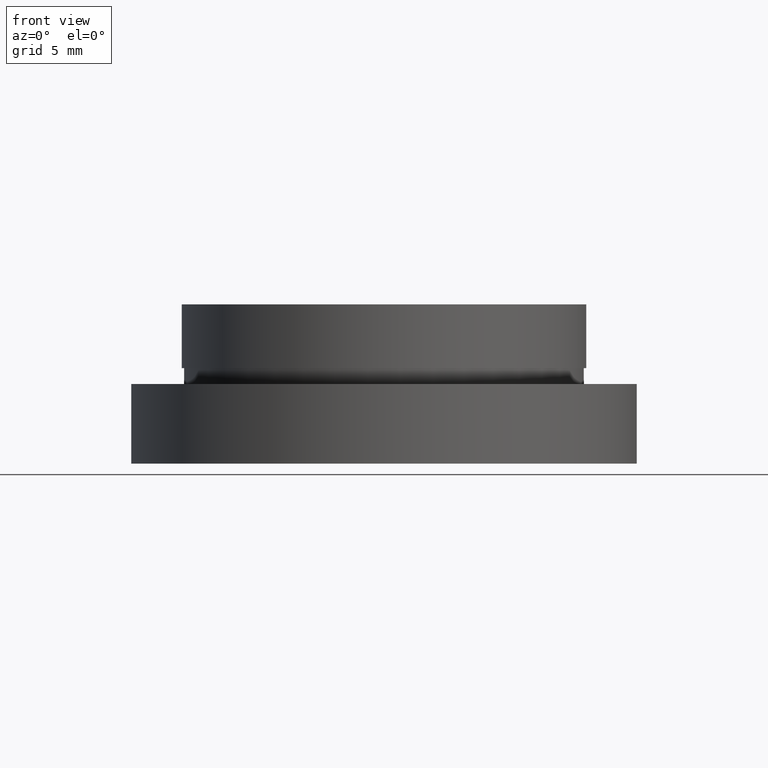
[diagram: clean part render]
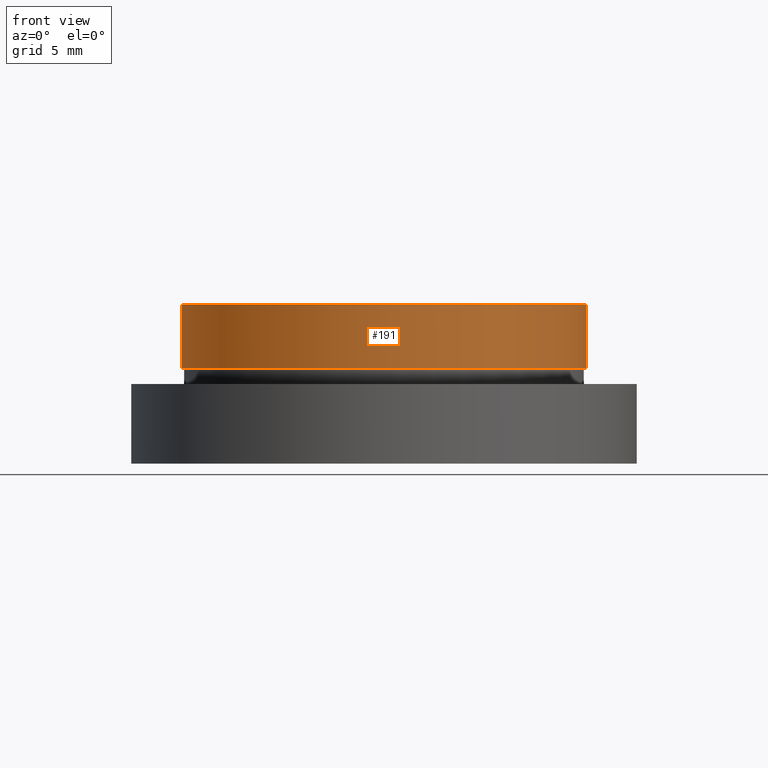
[diagram: same view with one face highlighted and labeled with its STEP entity id]
A machine part, front view. The second image highlights one B-rep face of the part: STEP entity #191.
In plain terms, the highlighted cylindrical surface (partial cylindrical patch) has radius 12.7 mm, axis along (-0, -0, -1).
Its self-contained STEP definition (entity closure, byte-faithful):
#6 = EDGE_CURVE ( 'NONE', #414, #295, #149, .T. ) ;
#24 = CARTESIAN_POINT ( 'NONE',  ( 0.0000000000000000000, 0.0000000000000000000, 0.0000000000000000000 ) ) ;
#31 = EDGE_LOOP ( 'NONE', ( #308, #97, #74, #338 ) ) ;
#38 = CARTESIAN_POINT ( 'NONE',  ( 0.0000000000000000000, 0.0000000000000000000, -4.000000000000000000 ) ) ;
#50 = EDGE_CURVE ( 'NONE', #322, #414, #172, .T. ) ;
#53 = VECTOR ( 'NONE', #292, 1000.000000000000000 ) ;
#74 = ORIENTED_EDGE ( 'NONE', *, *, #6, .T. ) ;
#81 = DIRECTION ( 'NONE',  ( -1.000000000000000000, 0.0000000000000000000, 0.0000000000000000000 ) ) ;
#97 = ORIENTED_EDGE ( 'NONE', *, *, #50, .T. ) ;
#104 = AXIS2_PLACEMENT_3D ( 'NONE', #38, #256, #181 ) ;
#105 = DIRECTION ( 'NONE',  ( -1.000000000000000000, 0.0000000000000000000, 0.0000000000000000000 ) ) ;
#119 = DIRECTION ( 'NONE',  ( -0.0000000000000000000, -0.0000000000000000000, -1.000000000000000000 ) ) ;
#133 = AXIS2_PLACEMENT_3D ( 'NONE', #24, #166, #81 ) ;
#149 = LINE ( 'NONE', #384, #53 ) ;
#161 = FACE_OUTER_BOUND ( 'NONE', #31, .T. ) ;
#166 = DIRECTION ( 'NONE',  ( -0.0000000000000000000, -0.0000000000000000000, -1.000000000000000000 ) ) ;
#172 = CIRCLE ( 'NONE', #133, 12.70000000000000100 ) ;
#181 = DIRECTION ( 'NONE',  ( -1.000000000000000000, 0.0000000000000000000, 0.0000000000000000000 ) ) ;
#191 = ADVANCED_FACE ( 'NONE', ( #161 ), #345, .T. ) ;
#203 = AXIS2_PLACEMENT_3D ( 'NONE', #210, #396, #105 ) ;
#210 = CARTESIAN_POINT ( 'NONE',  ( 0.0000000000000000000, 0.0000000000000000000, -19.14057971014493000 ) ) ;
#242 = CARTESIAN_POINT ( 'NONE',  ( 12.70000000000000100, 1.555301434917138600E-015, -4.000000000000000000 ) ) ;
#256 = DIRECTION ( 'NONE',  ( -0.0000000000000000000, -0.0000000000000000000, -1.000000000000000000 ) ) ;
#292 = DIRECTION ( 'NONE',  ( -0.0000000000000000000, -0.0000000000000000000, -1.000000000000000000 ) ) ;
#295 = VERTEX_POINT ( 'NONE', #395 ) ;
#304 = LINE ( 'NONE', #422, #355 ) ;
#308 = ORIENTED_EDGE ( 'NONE', *, *, #351, .F. ) ;
#322 = VERTEX_POINT ( 'NONE', #391 ) ;
#324 = CIRCLE ( 'NONE', #104, 12.70000000000000100 ) ;
#338 = ORIENTED_EDGE ( 'NONE', *, *, #366, .F. ) ;
#345 = CYLINDRICAL_SURFACE ( 'NONE', #203, 12.70000000000000100 ) ;
#351 = EDGE_CURVE ( 'NONE', #322, #405, #304, .T. ) ;
#355 = VECTOR ( 'NONE', #119, 1000.000000000000000 ) ;
#366 = EDGE_CURVE ( 'NONE', #405, #295, #324, .T. ) ;
#384 = CARTESIAN_POINT ( 'NONE',  ( -12.70000000000000100, 0.0000000000000000000, -19.14057971014493000 ) ) ;
#391 = CARTESIAN_POINT ( 'NONE',  ( 12.70000000000000100, 1.555301434917138600E-015, 0.0000000000000000000 ) ) ;
#395 = CARTESIAN_POINT ( 'NONE',  ( -12.70000000000000100, 0.0000000000000000000, -4.000000000000000000 ) ) ;
#396 = DIRECTION ( 'NONE',  ( -0.0000000000000000000, -0.0000000000000000000, -1.000000000000000000 ) ) ;
#405 = VERTEX_POINT ( 'NONE', #242 ) ;
#414 = VERTEX_POINT ( 'NONE', #434 ) ;
#422 = CARTESIAN_POINT ( 'NONE',  ( 12.70000000000000100, 1.555301434917138600E-015, -19.14057971014493000 ) ) ;
#434 = CARTESIAN_POINT ( 'NONE',  ( -12.70000000000000100, 0.0000000000000000000, 0.0000000000000000000 ) ) ;